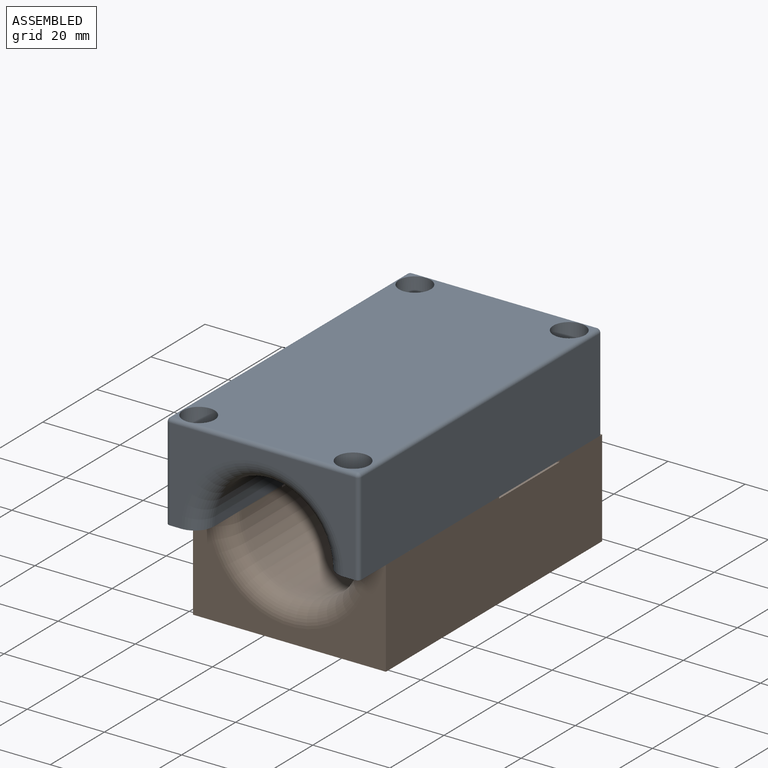
[diagram: assembled view]
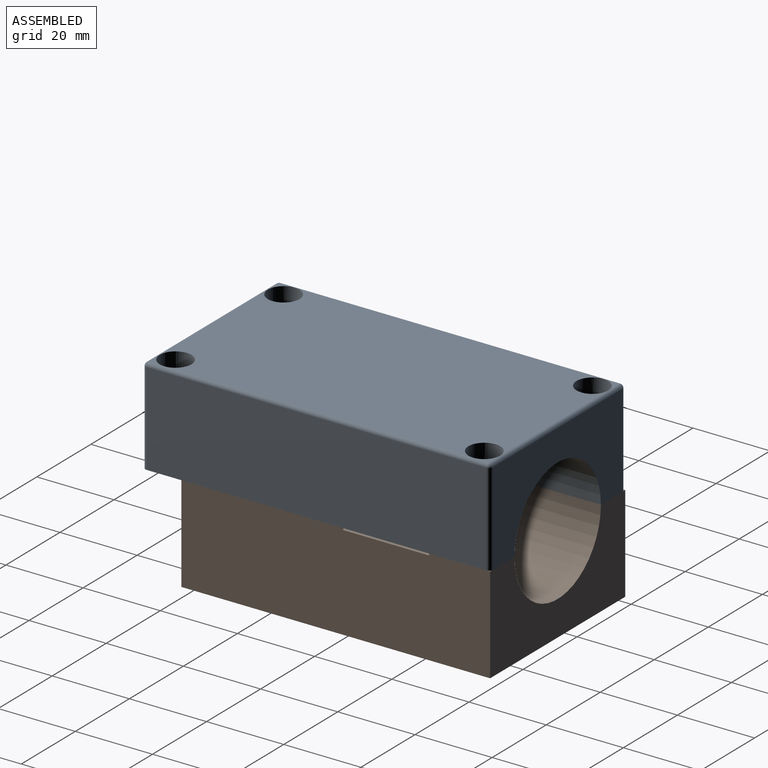
[diagram: assembled view, second angle]
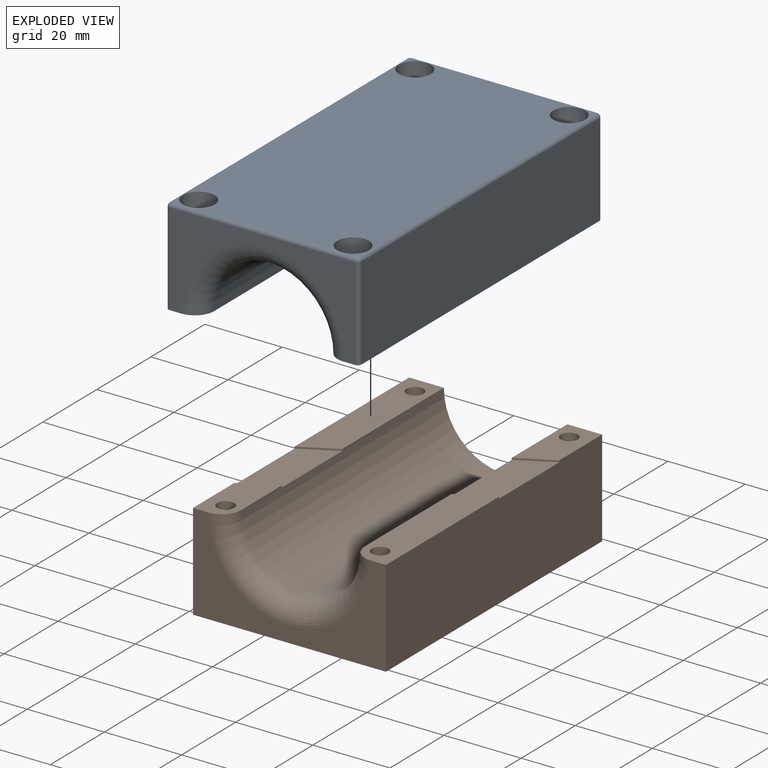
[diagram: exploded view]
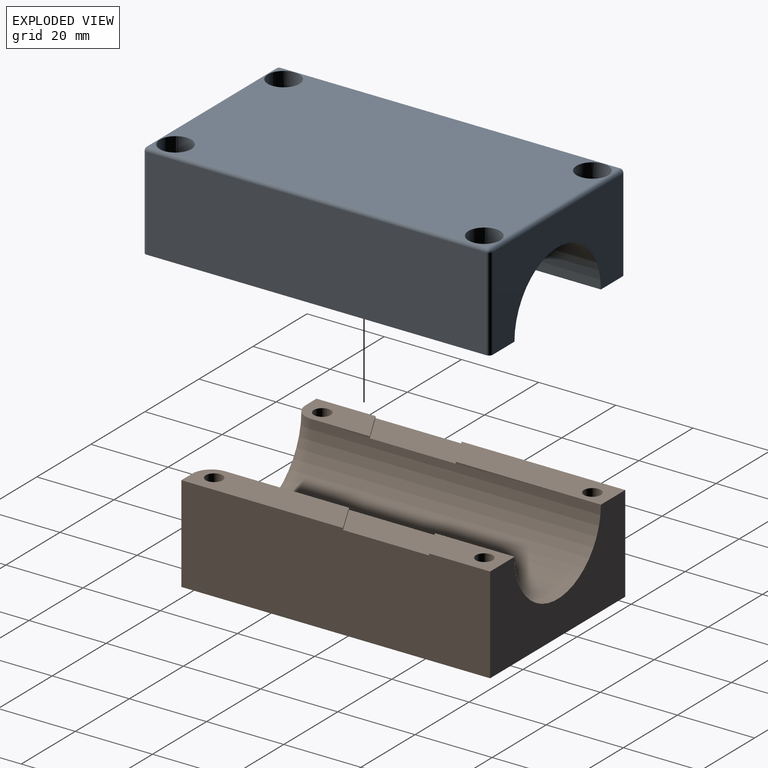
[diagram: exploded view, second angle]
ASSEMBLY  parts=2 mates=2
PART A: 37 faces, bbox 53.1x90x26.6 mm
  f0: plane 88x48mm, normal (0,0,1), area 4000.3mm2, adj f14,f17,f20,f23,f26,f31,f32,f36
  f1: plane 2.99x2.99mm, normal (0,0,1), area 2.8mm2, adj f20,f32,f36
  f2: plane 2.99x2.99mm, normal (0,0,1), area 2.8mm2, adj f17,f26,f32
  f3: plane 2.99x2.99mm, normal (0,0,1), area 2.8mm2, adj f14,f26,f31
  f4: cylinder r=16mm len=85mm, axis (0,1,0), area 4272.6mm2, adj f5,f9,f11,f24
  f5: plane 90x9mm, normal (0,0,-1), area 773.8mm2, adj f4,f6,f10,f11,f18,f21,f24,f30
  f6: plane 88x24mm, normal (1,0,0), area 2112mm2, adj f5,f30,f33,f36
  f7: plane 2.99x2.99mm, normal (0,0,1), area 2.8mm2, adj f23,f31,f36
  f8: plane 88x24mm, normal (-1,0,0), area 2112mm2, adj f9,f25,f26,f27
  f9: plane 90x9mm, normal (0,0,-1), area 773.8mm2, adj f4,f8,f10,f11,f12,f15,f24,f25
  f10: plane 48x24mm, normal (0,-1,0), area 459.3mm2, adj f5,f9,f24,f25,f30,f31
  f11: plane 48x24mm, normal (0,1,0), area 749.9mm2, adj f4,f5,f9,f27,f32,f33
  f12: cylinder r=2.2mm len=21mm, axis (0,0,1), area 290.3mm2, adj f9,f13
  f13: plane 8.25x8.25mm, normal (0,0,1), area 38.3mm2, adj f12,f14
  f14: cylinder r=4.12mm len=8.25mm, axis (0,0,1), area 103.7mm2, adj f0,f3,f13,f26,f31
  f15: cylinder r=2.2mm len=21mm, axis (0,0,1), area 290.3mm2, adj f9,f16
  f16: plane 8.25x8.25mm, normal (0,0,1), area 38.3mm2, adj f15,f17
  f17: cylinder r=4.12mm len=8.25mm, axis (0,0,1), area 103.7mm2, adj f0,f2,f16,f26,f32
  f18: cylinder r=2.2mm len=21mm, axis (0,0,1), area 290.3mm2, adj f5,f19
  f19: plane 8.25x8.25mm, normal (0,0,1), area 38.3mm2, adj f18,f20
  f20: cylinder r=4.12mm len=8.25mm, axis (0,0,1), area 103.7mm2, adj f0,f1,f19,f32,f36
  f21: cylinder r=2.2mm len=21mm, axis (0,0,1), area 290.3mm2, adj f5,f22
  f22: plane 8.25x8.25mm, normal (0,0,1), area 38.3mm2, adj f21,f23
  f23: cylinder r=4.12mm len=8.25mm, axis (0,0,1), area 103.7mm2, adj f0,f7,f22,f31,f36
  f24: torus R=21mm, axis (0,-1,0), area 439.6mm2, adj f4,f5,f9,f10
  f25: cylinder r=1mm len=24mm, axis (0,0,1), area 37.7mm2, adj f8,f9,f10,f28
  f26: cylinder r=1mm len=88mm, axis (0,-1,0), area 137.9mm2, adj f0,f2,f3,f8,f14,f17,f28,f29
  f27: cylinder r=1mm len=24mm, axis (0,0,-1), area 37.7mm2, adj f8,f9,f11,f29
  f28: sphere r=1mm, area 1.6mm2, adj f25,f26,f31
  f29: sphere r=1mm, area 1.6mm2, adj f26,f27,f32
  f30: cylinder r=1mm len=24mm, axis (0,0,-1), area 37.7mm2, adj f5,f6,f10,f34
  f31: cylinder r=1mm len=48mm, axis (1,0,0), area 75.1mm2, adj f0,f3,f7,f10,f14,f23,f28,f34
  f32: cylinder r=1mm len=48mm, axis (-1,0,0), area 75.1mm2, adj f0,f1,f2,f11,f17,f20,f29,f35
  f33: cylinder r=1mm len=24mm, axis (0,0,1), area 37.7mm2, adj f5,f6,f11,f35
  f34: sphere r=1mm, area 1.6mm2, adj f30,f31,f36
  f35: sphere r=1mm, area 1.6mm2, adj f32,f33,f36
  f36: cylinder r=1mm len=88mm, axis (0,1,0), area 137.9mm2, adj f0,f1,f6,f7,f20,f23,f34,f35
PART B: 25 faces, bbox 50x80x25 mm
  f0: plane 42.4x9mm, normal (0,0,1), area 344.9mm2, adj f2,f3,f9,f10,f22
  f1: plane 20.6x9mm, normal (0,0,1), area 148.7mm2, adj f3,f6,f9,f12,f21
  f2: plane 80x25mm, normal (-1,0,0), area 1989.7mm2, adj f0,f4,f5,f8,f9,f22,f23,f24
  f3: cylinder r=16mm len=75mm, axis (0,1,0), area 3749.4mm2, adj f0,f1,f4,f7,f9,f18,f19,f20
  f4: plane 20.09x9mm, normal (0,0,1), area 138.7mm2, adj f2,f3,f8,f16,f18,f23
  f5: plane 80x50mm, normal (0,0,-1), area 4000mm2, adj f2,f6,f8,f9
  f6: plane 80x25mm, normal (1,0,0), area 1989.7mm2, adj f1,f5,f7,f8,f9,f19,f20,f21
  f7: plane 41.89x9mm, normal (0,0,1), area 334.9mm2, adj f3,f6,f8,f14,f18,f20
  f8: plane 50x25mm, normal (0,-1,0), area 557.3mm2, adj f2,f4,f5,f6,f7,f18
  f9: plane 50x25mm, normal (0,1,0), area 847.9mm2, adj f0,f1,f2,f3,f5,f6
  f10: cylinder r=2.2mm len=12mm, axis (0,0,1), area 165.9mm2, adj f0,f11
  f11: cone r=0mm half-angle=59deg, axis (0,0,1), area 17.7mm2, adj f10
  f12: cylinder r=2.2mm len=12mm, axis (0,0,1), area 165.9mm2, adj f1,f13
  f13: cone r=0mm half-angle=59deg, axis (0,0,1), area 17.7mm2, adj f12
  f14: cylinder r=2.2mm len=12mm, axis (0,0,1), area 165.9mm2, adj f7,f15
  f15: cone r=0mm half-angle=59deg, axis (0,0,1), area 17.7mm2, adj f14
  f16: cylinder r=2.2mm len=12mm, axis (0,0,1), area 165.9mm2, adj f4,f17
  f17: cone r=0mm half-angle=59deg, axis (0,0,1), area 17.7mm2, adj f16
  f18: torus R=21mm, axis (0,-1,0), area 439.6mm2, adj f3,f4,f7,f8
  f19: plane 27.09x9.01mm, normal (0,0,1), area 200.8mm2, adj f3,f6,f20,f21
  f20: plane 9.01x4.79mm, normal (-0.47,0.88,0), area 4.7mm2, adj f3,f6,f7,f19
  f21: plane 9.01x4.79mm, normal (0.47,-0.88,0), area 4.7mm2, adj f1,f3,f6,f19
  f22: plane 9.01x4.79mm, normal (0.47,-0.88,0), area 4.7mm2, adj f0,f2,f3,f24
  f23: plane 9.01x4.79mm, normal (-0.47,0.88,0), area 4.7mm2, adj f2,f3,f4,f24
  f24: plane 27.09x9.01mm, normal (0,0,1), area 200.8mm2, adj f2,f3,f22,f23
PLACE A t=(-24.26,6,-47.5)mm
PLACE B t=(-24.26,6,-47.5)mm
MATE planar A.f5 <-> B.f7  axis (0,0,-1) through (-3.72,-38.7,-47.5)mm
MATE planar A.f11 <-> B.f9  axis (0,1,0) through (-24.26,6,-32.7)mm
